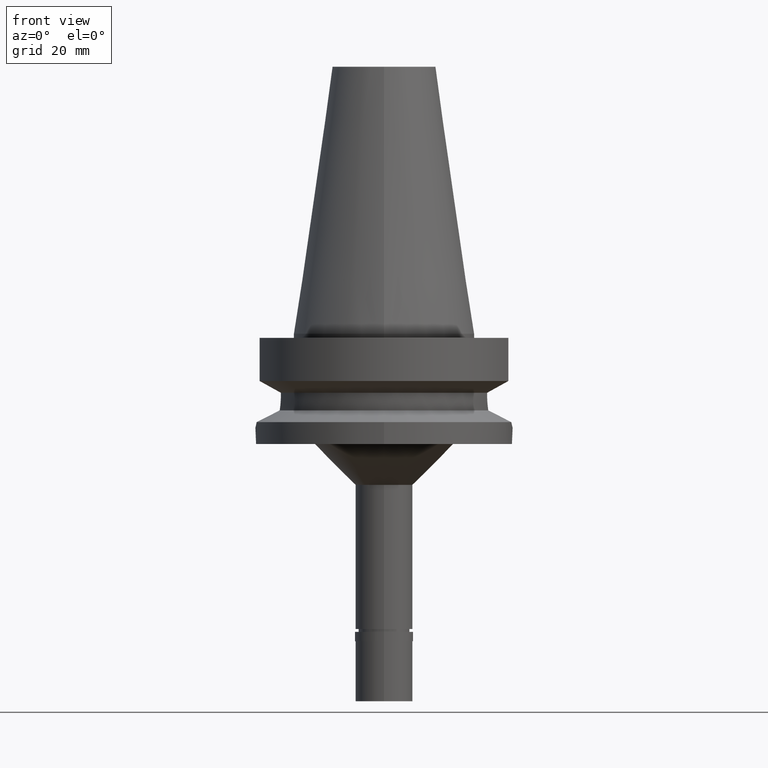
[diagram: clean part render]
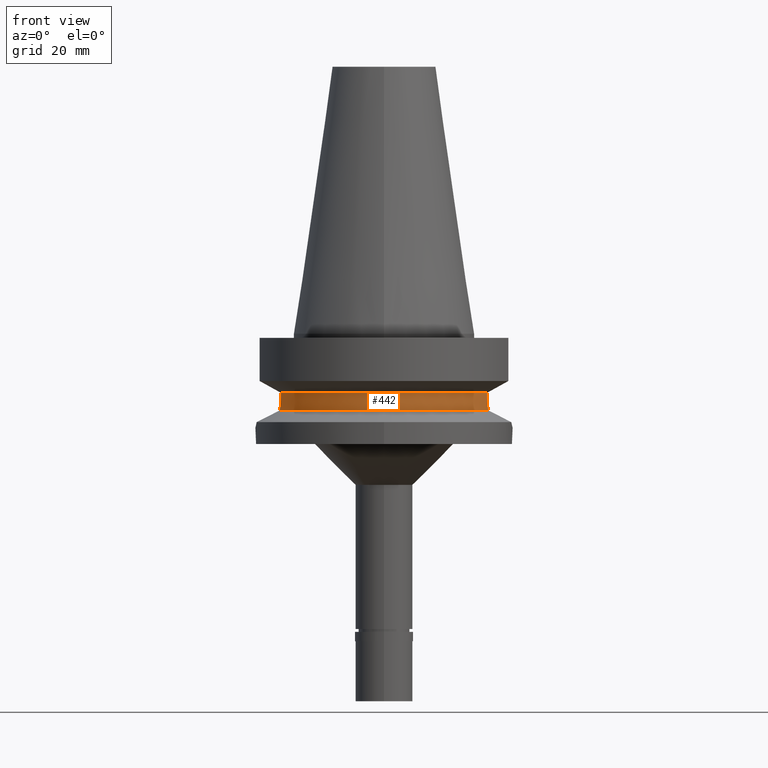
[diagram: same view with one face highlighted and labeled with its STEP entity id]
A machine part, front view. The second image highlights one B-rep face of the part: STEP entity #442.
In plain terms, the highlighted cylindrical surface (partial cylindrical patch) has radius 26.5 mm, axis along (0, 0, -1).
Its self-contained STEP definition (entity closure, byte-faithful):
#104 = EDGE_LOOP ( 'NONE', ( #700, #1169, #2259, #714, #127, #2337 ) ) ;
#127 = ORIENTED_EDGE ( 'NONE', *, *, #1425, .T. ) ;
#142 = AXIS2_PLACEMENT_3D ( 'NONE', #1721, #2827, #2838 ) ;
#184 = VECTOR ( 'NONE', #1233, 1000.000000000000114 ) ;
#194 = FACE_OUTER_BOUND ( 'NONE', #104, .T. ) ;
#236 = CIRCLE ( 'NONE', #417, 26.50000000000000711 ) ;
#257 = CARTESIAN_POINT ( 'NONE',  ( 25.53175183775000079, -7.097862220092999941, -18.74774300138999905 ) ) ;
#269 = CARTESIAN_POINT ( 'NONE',  ( 25.25396284446427586, -8.030907492771135026, -15.59360398737620557 ) ) ;
#295 = CARTESIAN_POINT ( 'NONE',  ( -25.33293017119196122, -7.777974374872430374, -17.02562462713450486 ) ) ;
#311 = CARTESIAN_POINT ( 'NONE',  ( -25.48482038766499969, -7.266679548437280367, -18.43222872448169269 ) ) ;
#417 = AXIS2_PLACEMENT_3D ( 'NONE', #1173, #1661, #536 ) ;
#442 = ADVANCED_FACE ( 'NONE', ( #194 ), #1524, .T. ) ;
#520 = CARTESIAN_POINT ( 'NONE',  ( 25.43786330457131584, -7.435589081402770084, -18.11654212004048148 ) ) ;
#532 = CARTESIAN_POINT ( 'NONE',  ( 25.36814761471840285, -7.663830712951458679, -17.48803584499038166 ) ) ;
#536 = DIRECTION ( 'NONE',  ( 0.9527442516822307583, -0.3037735849057093818, 0.0000000000000000000 ) ) ;
#604 = B_SPLINE_CURVE_WITH_KNOTS ( 'NONE', 3,
 ( #1403, #2280, #269, #2712, #767, #2339, #2097, #2730, #2296, #1862, #2069, #532, #520, #257 ),
 .UNSPECIFIED., .F., .F.,
 ( 4, 2, 2, 1, 1, 2, 2, 4 ),
 ( 0.0000000000000000000, 0.2499999999999729106, 0.3749999999999600320, 0.4374999999999522049, 0.4687499999999483746, 0.4843749999999478195, 0.4999999999999473754, 1.000000000000000000 ),
 .UNSPECIFIED. ) ;
#700 = ORIENTED_EDGE ( 'NONE', *, *, #2708, .F. ) ;
#714 = ORIENTED_EDGE ( 'NONE', *, *, #1769, .F. ) ;
#767 = CARTESIAN_POINT ( 'NONE',  ( 25.28048358772242210, -7.947040743789336226, -16.24400980667427064 ) ) ;
#768 = CIRCLE ( 'NONE', #142, 26.49999999999998224 ) ;
#772 = CARTESIAN_POINT ( 'NONE',  ( -25.24772266958000344, -8.050000000000000711, -14.94999999999999929 ) ) ;
#787 = CARTESIAN_POINT ( 'NONE',  ( -25.53175183775000079, -7.097862220092999941, -18.74774300138999905 ) ) ;
#859 = DIRECTION ( 'NONE',  ( 0.0000000000000000000, 0.0000000000000000000, -1.000000000000000000 ) ) ;
#996 = CARTESIAN_POINT ( 'NONE',  ( -25.35412323722924555, -7.708830947934377953, -17.27007949472249138 ) ) ;
#1044 = CARTESIAN_POINT ( 'NONE',  ( 0.0000000000000000000, 2.118271568485000005E-14, 72.96999999999999886 ) ) ;
#1100 = DIRECTION ( 'NONE',  ( 0.0000000000000000000, -1.000000000000000000, 0.0000000000000000000 ) ) ;
#1168 = DIRECTION ( 'NONE',  ( 1.014693311834022080E-06, 3.182448466684070227E-06, -0.9999999999944211293 ) ) ;
#1169 = ORIENTED_EDGE ( 'NONE', *, *, #2397, .T. ) ;
#1173 = CARTESIAN_POINT ( 'NONE',  ( 0.0000000000000000000, 1.065333950388000029E-14, -14.45225699861000024 ) ) ;
#1216 = CARTESIAN_POINT ( 'NONE',  ( -25.32844777903596167, -7.792527725354480239, -16.96974754110710037 ) ) ;
#1233 = DIRECTION ( 'NONE',  ( -2.938244121254066631E-06, 9.215406120122205750E-06, 0.9999999999532215300 ) ) ;
#1277 = VERTEX_POINT ( 'NONE', #2051 ) ;
#1396 = CARTESIAN_POINT ( 'NONE',  ( -25.24772266957999989, -8.049999999999984723, -15.58999736272119030 ) ) ;
#1403 = CARTESIAN_POINT ( 'NONE',  ( 25.24772266958000344, -8.050000000000000711, -14.94999999999999929 ) ) ;
#1422 = CARTESIAN_POINT ( 'NONE',  ( 25.24772216451000162, -8.050001584080000328, -14.45224489483999974 ) ) ;
#1425 = EDGE_CURVE ( 'NONE', #2473, #1963, #236, .T. ) ;
#1428 = CARTESIAN_POINT ( 'NONE',  ( -25.27269391207093463, -7.973288729734981040, -16.24537813256335284 ) ) ;
#1448 = CARTESIAN_POINT ( 'NONE',  ( -25.32550670071048771, -7.802071535306486894, -16.93256103012915048 ) ) ;
#1524 = CYLINDRICAL_SURFACE ( 'NONE', #2058, 26.50000000000000000 ) ;
#1651 = CARTESIAN_POINT ( 'NONE',  ( -25.39164951572342588, -7.584807667340694337, -17.65197957158412834 ) ) ;
#1661 = DIRECTION ( 'NONE',  ( 0.0000000000000000000, 0.0000000000000000000, -1.000000000000000000 ) ) ;
#1721 = CARTESIAN_POINT ( 'NONE',  ( 0.0000000000000000000, 0.0000000000000000000, -18.74774300138999905 ) ) ;
#1766 = EDGE_CURVE ( 'NONE', #2293, #2870, #604, .T. ) ;
#1769 = EDGE_CURVE ( 'NONE', #2473, #2293, #2312, .T. ) ;
#1841 = CARTESIAN_POINT ( 'NONE',  ( -25.44392837589771972, -7.408239565064243415, -18.11709494171709878 ) ) ;
#1862 = CARTESIAN_POINT ( 'NONE',  ( 25.31950905643225269, -7.821515286679209034, -16.85442525727607332 ) ) ;
#1959 = CARTESIAN_POINT ( 'NONE',  ( -25.53175183775000079, -7.097862220092999941, -18.74774300138999905 ) ) ;
#1963 = VERTEX_POINT ( 'NONE', #2367 ) ;
#2007 = B_SPLINE_CURVE_WITH_KNOTS ( 'NONE', 3,
 ( #787, #311, #1841, #1651, #2547, #996, #2076, #295, #1216, #1448, #2090, #1428, #1396, #2358 ),
 .UNSPECIFIED., .F., .F.,
 ( 4, 2, 2, 1, 1, 2, 2, 4 ),
 ( 0.0000000000000000000, 0.2499999999999874545, 0.3749999999999825140, 0.4374999999999785727, 0.4687499999999779621, 0.4843749999999790168, 0.4999999999999800160, 1.000000000000000000 ),
 .UNSPECIFIED. ) ;
#2051 = CARTESIAN_POINT ( 'NONE',  ( -25.24772266958000344, -8.050000000000000711, -14.94999999999999929 ) ) ;
#2058 = AXIS2_PLACEMENT_3D ( 'NONE', #1044, #859, #1100 ) ;
#2069 = CARTESIAN_POINT ( 'NONE',  ( 25.32118155423727046, -7.816096717213359746, -16.87652453452194123 ) ) ;
#2076 = CARTESIAN_POINT ( 'NONE',  ( -25.34388450889710143, -7.742333382929722951, -17.15666984719476318 ) ) ;
#2090 = CARTESIAN_POINT ( 'NONE',  ( -25.32419709970849553, -7.806318959900040433, -16.91578803901792227 ) ) ;
#2097 = CARTESIAN_POINT ( 'NONE',  ( 25.30212919435223640, -7.877667573966355086, -16.61042047325791771 ) ) ;
#2259 = ORIENTED_EDGE ( 'NONE', *, *, #1766, .F. ) ;
#2280 = CARTESIAN_POINT ( 'NONE',  ( 25.24772266957999989, -8.050000000000000711, -15.26991324111208037 ) ) ;
#2293 = VERTEX_POINT ( 'NONE', #2534 ) ;
#2296 = CARTESIAN_POINT ( 'NONE',  ( 25.31648647172269051, -7.831300037041386553, -16.81378020971980902 ) ) ;
#2312 = LINE ( 'NONE', #1422, #2728 ) ;
#2337 = ORIENTED_EDGE ( 'NONE', *, *, #2675, .F. ) ;
#2339 = CARTESIAN_POINT ( 'NONE',  ( 25.29452398121202350, -7.902090651788173936, -16.48828405105369654 ) ) ;
#2358 = CARTESIAN_POINT ( 'NONE',  ( -25.24772266958000344, -8.050000000000000711, -14.94999999999999929 ) ) ;
#2367 = CARTESIAN_POINT ( 'NONE',  ( -25.24772413196999921, -8.049995413418999490, -14.45229204608000018 ) ) ;
#2392 = VERTEX_POINT ( 'NONE', #1959 ) ;
#2397 = EDGE_CURVE ( 'NONE', #2392, #2870, #768, .T. ) ;
#2415 = CARTESIAN_POINT ( 'NONE',  ( 25.24772266958000344, -8.050000000000000711, -14.45225699861000024 ) ) ;
#2426 = CARTESIAN_POINT ( 'NONE',  ( 25.53175183775000079, -7.097862220092999941, -18.74774300138999905 ) ) ;
#2473 = VERTEX_POINT ( 'NONE', #2415 ) ;
#2534 = CARTESIAN_POINT ( 'NONE',  ( 25.24772266958000344, -8.050000000000000711, -14.94999999999999929 ) ) ;
#2547 = CARTESIAN_POINT ( 'NONE',  ( -25.37573308857809096, -7.637710303742681006, -17.49818662949834192 ) ) ;
#2576 = LINE ( 'NONE', #772, #184 ) ;
#2675 = EDGE_CURVE ( 'NONE', #1277, #1963, #2576, .T. ) ;
#2708 = EDGE_CURVE ( 'NONE', #2392, #1277, #2007, .T. ) ;
#2712 = CARTESIAN_POINT ( 'NONE',  ( 25.27268336911707891, -7.971811480177046327, -16.08115959838609399 ) ) ;
#2728 = VECTOR ( 'NONE', #1168, 1000.000000000000114 ) ;
#2730 = CARTESIAN_POINT ( 'NONE',  ( 25.31202572170775866, -7.845729406577843790, -16.75279821058729013 ) ) ;
#2827 = DIRECTION ( 'NONE',  ( 0.0000000000000000000, 0.0000000000000000000, 1.000000000000000000 ) ) ;
#2838 = DIRECTION ( 'NONE',  ( -0.9634623335000935818, -0.2678438573619981722, 0.0000000000000000000 ) ) ;
#2870 = VERTEX_POINT ( 'NONE', #2426 ) ;